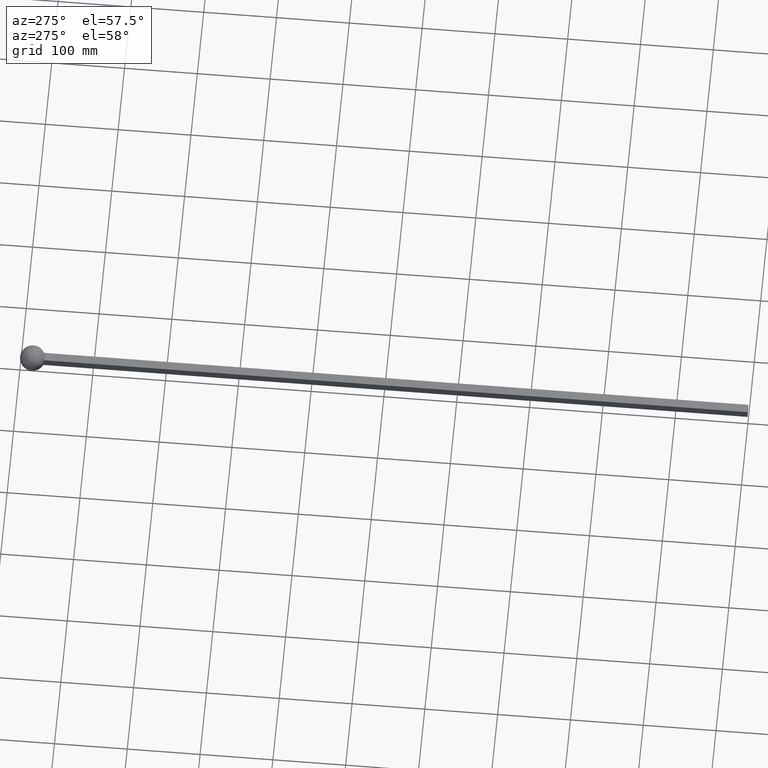
[diagram: clean part render]
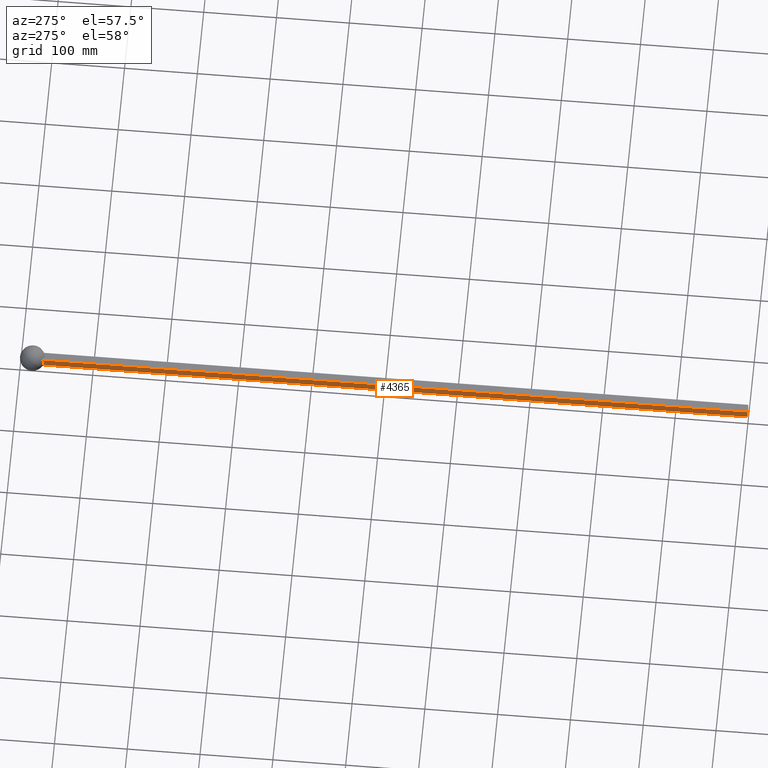
[diagram: same view with one face highlighted and labeled with its STEP entity id]
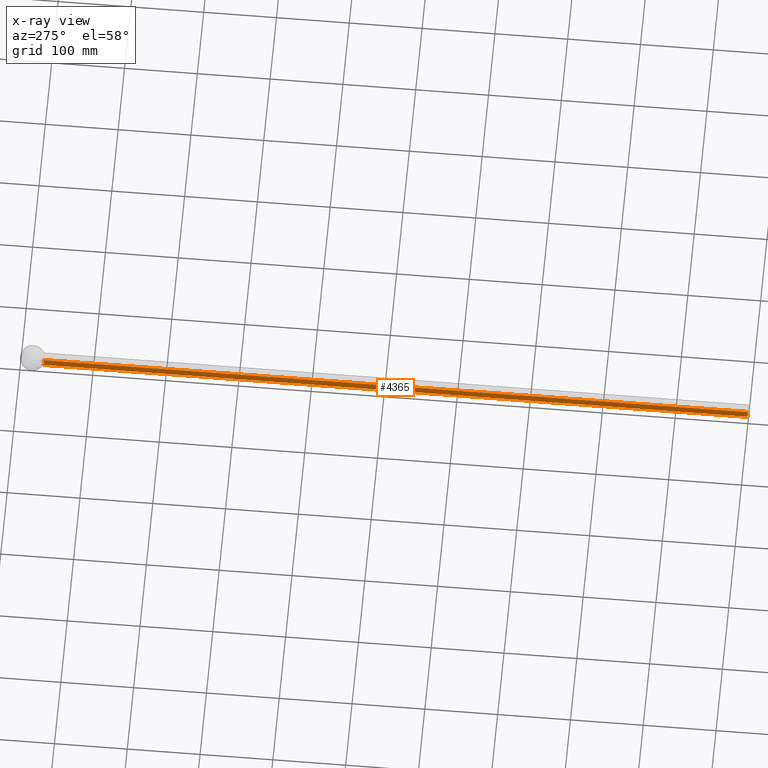
[diagram: x-ray of the same camera — body ghosted, the highlighted face saturated]
A machine part, auxiliary view. The second image highlights one B-rep face of the part: STEP entity #4365.
The next image is the same camera in x-ray: the body ghosted, the highlighted face saturated — about 0% of this face is hidden behind the body in this view.
In plain terms, the highlighted planar face has unit normal (-1, 0, -0).
Its self-contained STEP definition (entity closure, byte-faithful):
#324 = EDGE_LOOP ( 'NONE', ( #4483, #13128, #5308, #3856 ) ) ;
#469 = EDGE_CURVE ( 'NONE', #800, #871, #8256, .T. ) ;
#588 = DIRECTION ( 'NONE',  ( -2.168404344971008868E-16, 0.000000000000000000, 1.000000000000000000 ) ) ;
#666 = EDGE_CURVE ( 'NONE', #12326, #871, #10174, .T. ) ;
#800 = VERTEX_POINT ( 'NONE', #2765 ) ;
#871 = VERTEX_POINT ( 'NONE', #5954 ) ;
#1093 = VECTOR ( 'NONE', #2516, 1000.000000000000000 ) ;
#1333 = DIRECTION ( 'NONE',  ( -2.110461335804159125E-16, 0.000000000000000000, 1.000000000000000000 ) ) ;
#1758 = VECTOR ( 'NONE', #1850, 1000.000000000000000 ) ;
#1850 = DIRECTION ( 'NONE',  ( 0.000000000000000000, -1.000000000000000000, 0.000000000000000000 ) ) ;
#2516 = DIRECTION ( 'NONE',  ( 2.168404344971008868E-16, -0.000000000000000000, -1.000000000000000000 ) ) ;
#2765 = CARTESIAN_POINT ( 'NONE',  ( -5.999999999999997335, 967.1947721349862377, -6.000000000000001776 ) ) ;
#3570 = FACE_OUTER_BOUND ( 'NONE', #324, .T. ) ;
#3856 = ORIENTED_EDGE ( 'NONE', *, *, #469, .T. ) ;
#4365 = ADVANCED_FACE ( 'NONE', ( #3570 ), #4725, .T. ) ;
#4483 = ORIENTED_EDGE ( 'NONE', *, *, #666, .F. ) ;
#4534 = DIRECTION ( 'NONE',  ( -1.000000000000000000, 0.000000000000000000, -2.168404344971008868E-16 ) ) ;
#4725 = PLANE ( 'NONE',  #10978 ) ;
#5308 = ORIENTED_EDGE ( 'NONE', *, *, #13175, .F. ) ;
#5361 = CARTESIAN_POINT ( 'NONE',  ( -6.000000000000000000, 1000.002000000000066, 6.000000000000000000 ) ) ;
#5653 = CARTESIAN_POINT ( 'NONE',  ( -6.000000000000000000, 1000.002000000000066, 6.000000000000000000 ) ) ;
#5769 = EDGE_CURVE ( 'NONE', #7023, #12326, #6510, .T. ) ;
#5801 = AXIS2_PLACEMENT_3D ( 'NONE', #9651, #9613, #1333 ) ;
#5865 = VECTOR ( 'NONE', #6370, 1000.000000000000000 ) ;
#5954 = CARTESIAN_POINT ( 'NONE',  ( -5.999999999999997335, -0.000000000000000000, -6.000000000000001776 ) ) ;
#6364 = CARTESIAN_POINT ( 'NONE',  ( -5.999999999999996447, 967.1947721349862377, 6.000000000000000000 ) ) ;
#6370 = DIRECTION ( 'NONE',  ( 0.000000000000000000, -1.000000000000000000, 0.000000000000000000 ) ) ;
#6510 = LINE ( 'NONE', #5361, #5865 ) ;
#7023 = VERTEX_POINT ( 'NONE', #6364 ) ;
#8256 = LINE ( 'NONE', #9005, #1758 ) ;
#9005 = CARTESIAN_POINT ( 'NONE',  ( -5.999999999999997335, 1000.002000000000066, -6.000000000000001776 ) ) ;
#9613 = DIRECTION ( 'NONE',  ( -1.000000000000000000, -0.000000000000000000, -2.168404344971008868E-16 ) ) ;
#9651 = CARTESIAN_POINT ( 'NONE',  ( -5.999999999999998224, 982.5000000000001137, -1.301042606982604926E-15 ) ) ;
#10174 = LINE ( 'NONE', #10497, #1093 ) ;
#10497 = CARTESIAN_POINT ( 'NONE',  ( -6.000000000000000000, 0.000000000000000000, 6.000000000000000000 ) ) ;
#10923 = CARTESIAN_POINT ( 'NONE',  ( -6.000000000000000000, 0.000000000000000000, 6.000000000000000000 ) ) ;
#10978 = AXIS2_PLACEMENT_3D ( 'NONE', #5653, #4534, #588 ) ;
#12086 = CIRCLE ( 'NONE', #5801, 16.43928222277350670 ) ;
#12326 = VERTEX_POINT ( 'NONE', #10923 ) ;
#13128 = ORIENTED_EDGE ( 'NONE', *, *, #5769, .F. ) ;
#13175 = EDGE_CURVE ( 'NONE', #800, #7023, #12086, .T. ) ;